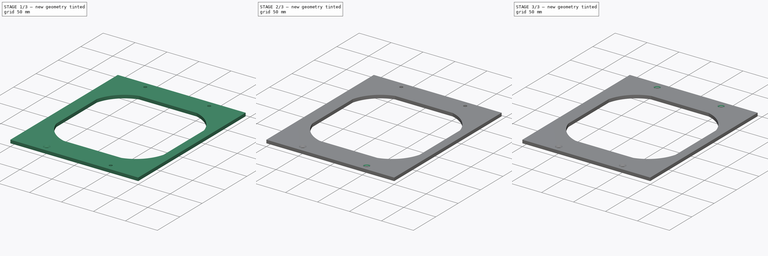
[diagram: build sequence overview — one tinted view per stage of 3, left to right]
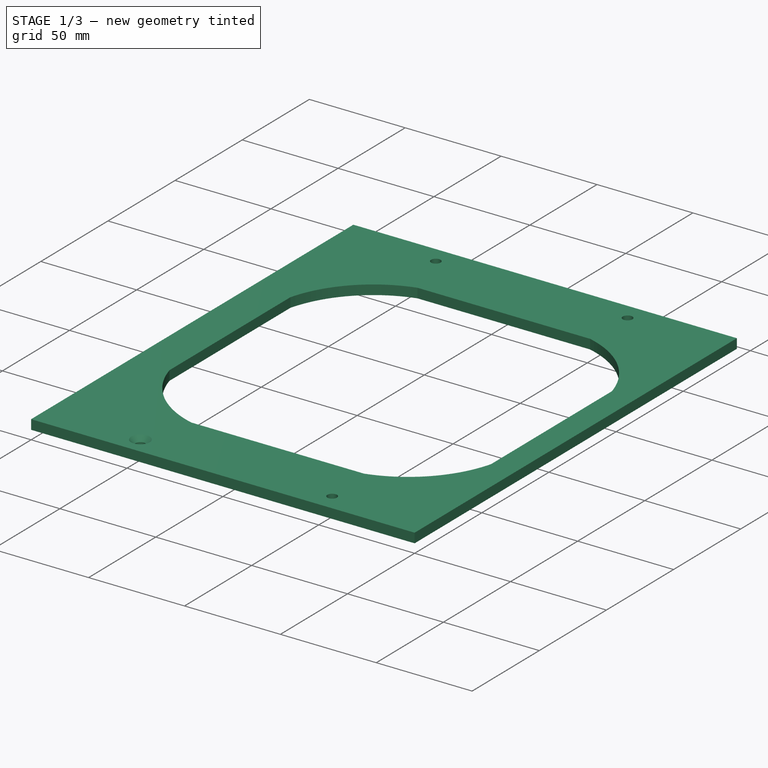
[diagram: stage 1 of 3 — iso view after this stage's code; geometry added in this stage tinted green]
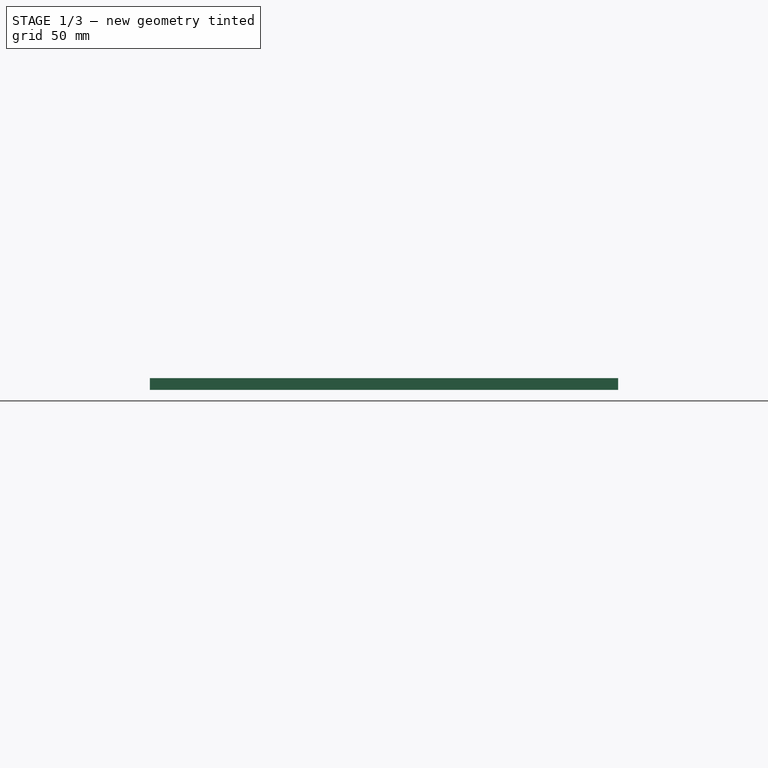
[diagram: stage 1 of 3 — front view after this stage's code; geometry added in this stage tinted green]
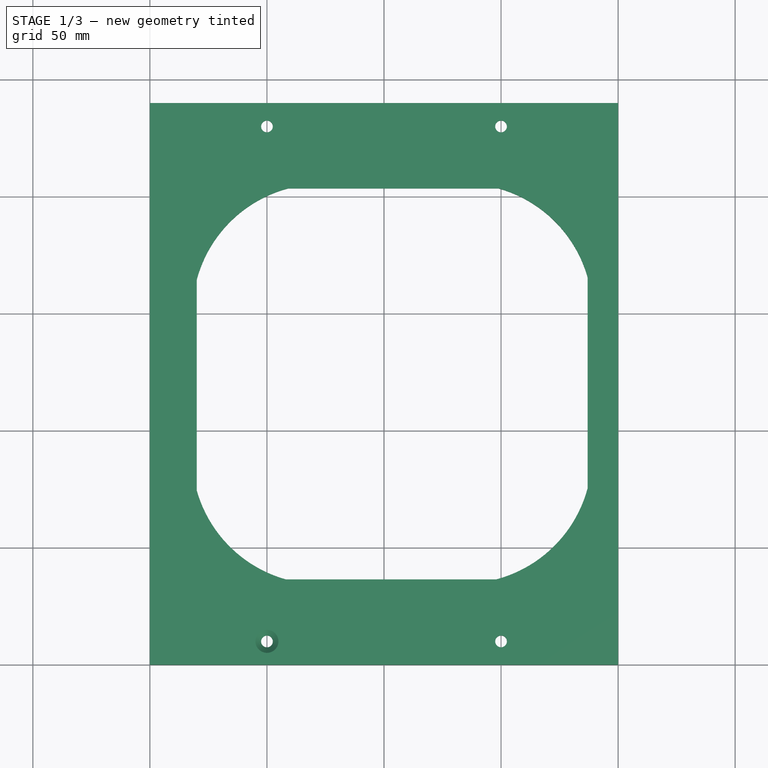
[diagram: stage 1 of 3 — top view after this stage's code; geometry added in this stage tinted green]
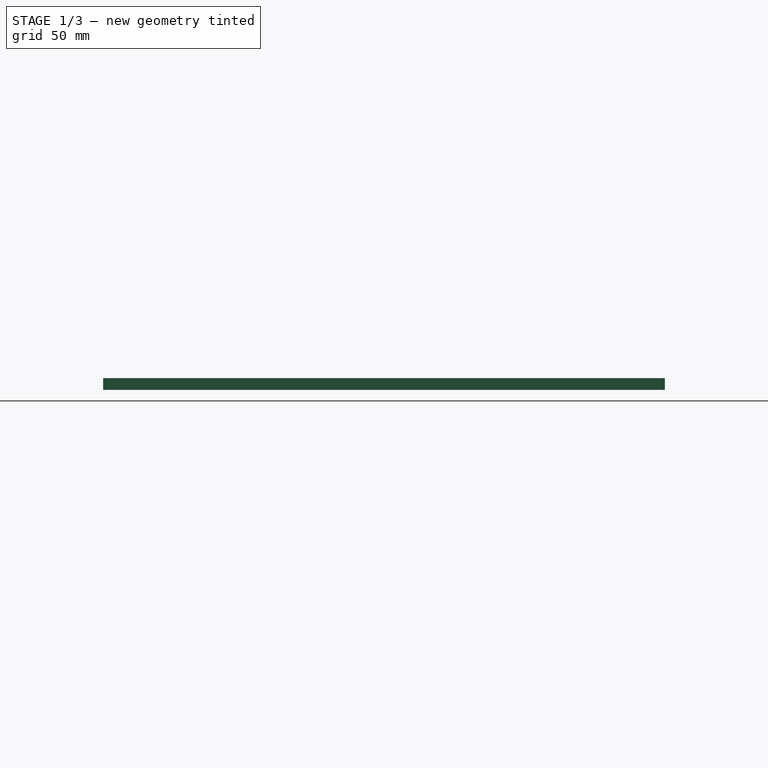
[diagram: stage 1 of 3 — right view after this stage's code; geometry added in this stage tinted green]
FCSTD DOCUMENT  (FreeCAD 0.20R29177 (Git))
Label: FlowerPotFrame-OffCenter
License: All rights reserved
LicenseURL: http://en.wikipedia.org/wiki/All_rights_reserved
objects: Part::Chamfer×4, Sketcher::SketchObject×3, Part::Face×3, Part::Cut×2, Part::Extrusion×1
note: 13 computed .brp shape members not serialized (recipe doc carries the construction recipe); baked Part::Feature solids carry a one-line shape summary decoded from their .brp

FEATURE [Sketcher::SketchObject] Sketch
  FullyConstrained = true
  sketch-geometry (4):
    g0: LineSegment StartX=0 StartY=0 StartZ=0 EndX=200 EndY=0 EndZ=0
    g1: LineSegment StartX=200 StartY=0 StartZ=0 EndX=200 EndY=240 EndZ=0
    g2: LineSegment StartX=200 StartY=240 StartZ=0 EndX=0 EndY=240 EndZ=0
    g3: LineSegment StartX=0 StartY=240 StartZ=0 EndX=0 EndY=0 EndZ=0
  constraints (11):
    c: Coincident(g0,g1)
    c: Coincident(g1,g2)
    c: Coincident(g2,g3)
    c: Coincident(g3,g0)
    c: Horizontal(g0)
    c: Horizontal(g2)
    c: Vertical(g1)
    c: Vertical(g3)
    c: Coincident(g0,g-1)
    c: DistanceX(g2,g2) = 200
    c: DistanceY(g3,g3) = 240
FEATURE [Sketcher::SketchObject] Sketch001
  ExternalGeometry = -> [Sketch]
  FullyConstrained = true
  MapMode = 2
  Support = -> [Sketch]
  sketch-geometry (18):
    g0: LineSegment StartX=0 StartY=240 StartZ=0 EndX=200 EndY=0 EndZ=0
    g1: LineSegment StartX=0 StartY=0 StartZ=0 EndX=200 EndY=240 EndZ=0
    g2: LineSegment StartX=20 StartY=203.5 StartZ=0 EndX=187 EndY=203.5 EndZ=0
    g3: LineSegment StartX=187 StartY=203.5 StartZ=0 EndX=187 EndY=36.5 EndZ=0
    g4: LineSegment StartX=187 StartY=36.5 StartZ=0 EndX=20 EndY=36.5 EndZ=0
    g5: LineSegment StartX=20 StartY=36.5 StartZ=0 EndX=20 EndY=203.5 EndZ=0
    g6: LineSegment StartX=187 StartY=203.5 StartZ=0 EndX=20 EndY=36.5 EndZ=0
    g7: LineSegment StartX=20 StartY=203.5 StartZ=0 EndX=187 EndY=36.5 EndZ=0
    g8: ArcOfCircle CenterX=73.1489 CenterY=150.351 CenterZ=0 NormalX=0 NormalY=0 NormalZ=1 AngleXU=0 Radius=55 StartAngle=1.83097 EndAngle=2.88141
    g9: ArcOfCircle CenterX=134.066 CenterY=150.566 CenterZ=0 NormalX=0 NormalY=0 NormalZ=1 AngleXU=0 Radius=55 StartAngle=0.274975 EndAngle=1.29582
    g10: ArcOfCircle CenterX=72.9338 CenterY=89.4338 CenterZ=0 NormalX=0 NormalY=0 NormalZ=1 AngleXU=0 Radius=55 StartAngle=3.41657 EndAngle=4.43741
    g11: ArcOfCircle CenterX=133.851 CenterY=89.6489 CenterZ=0 NormalX=0 NormalY=0 NormalZ=1 AngleXU=0 Radius=55 StartAngle=4.97257 EndAngle=6.02301
    g12: LineSegment StartX=20 StartY=74.5 StartZ=0 EndX=20 EndY=164.5 EndZ=0
    g13: LineSegment StartX=59 StartY=203.5 StartZ=0 EndX=149 EndY=203.5 EndZ=0
    g14: LineSegment StartX=187 StartY=165.5 StartZ=0 EndX=187 EndY=75.5 EndZ=0
    g15: LineSegment StartX=148 StartY=36.5 StartZ=0 EndX=58 EndY=36.5 EndZ=0
    g16: GeomPoint X=103.5 Y=120 Z=0
    g17: GeomPoint X=100 Y=120 Z=0
  constraints (52):
    c: Coincident(g0,g-6)
    c: Coincident(g0,g-5)
    c: Coincident(g1,g-6)
    c: Coincident(g1,g-4)
    c: Coincident(g2,g3)
    c: Coincident(g3,g4)
    c: Coincident(g4,g5)
    c: Coincident(g5,g2)
    c: Horizontal(g2)
    c: Horizontal(g4)
    c: Vertical(g3)
    c: Vertical(g5)
    c: DistanceX(g4,g4) = 167
    c: DistanceY(g3,g3) = 167
    c: Coincident(g6,g2)
    c: Coincident(g6,g4)
    c: Coincident(g7,g2)
    c: Coincident(g7,g3)
    c: PointOnObject(g8,g7)
    c: PointOnObject(g8,g5)
    c: PointOnObject(g8,g2)
    c: PointOnObject(g9,g6)
    c: PointOnObject(g9,g2)
    c: PointOnObject(g9,g3)
    c: PointOnObject(g10,g6)
    c: PointOnObject(g10,g4)
    c: PointOnObject(g10,g5)
    c: PointOnObject(g11,g7)
    c: PointOnObject(g11,g3)
    c: PointOnObject(g11,g4)
    c: DistanceX(g8,g9) = 90
    c: DistanceY(g11,g9) = 90
    c: DistanceX(g10,g11) = 90
    c: DistanceY(g4,g10) = 38
    c: Radius(g8) = 55
    c: Radius(g9) = 55
    c: Radius(g11) = 55
    c: Radius(g10) = 55
    c: Coincident(g12,g10)
    c: Coincident(g12,g8)
    c: Coincident(g13,g8)
    c: Coincident(g13,g9)
    c: Coincident(g14,g9)
    c: Coincident(g14,g11)
    c: Coincident(g15,g11)
    c: Coincident(g15,g10)
    c: PointOnObject(g16,g7)
    c: PointOnObject(g17,g0)
    c: PointOnObject(g16,g6)
    c: PointOnObject(g17,g1)
    c: Horizontal(g16,g17)
    c: DistanceX(g1,g4) = 20
FEATURE [Part::Face] Face
  FaceMakerClass = Part::FaceMakerBullseye
  Sources = -> [Sketch]
FEATURE [Part::Face] Face001
  FaceMakerClass = Part::FaceMakerBullseye
  Sources = -> [Sketch001]
FEATURE [Part::Cut] Cut
  Base = -> Face
  Tool = -> Face001
FEATURE [Sketcher::SketchObject] Sketch002
  ExternalGeometry = -> [Sketch]
  FullyConstrained = true
  MapMode = 5
  Support = -> [Cut]
  sketch-geometry (4):
    g0: Circle CenterX=50 CenterY=230 CenterZ=0 NormalX=0 NormalY=0 NormalZ=1 AngleXU=0 Radius=2.5
    g1: Circle CenterX=150 CenterY=230 CenterZ=0 NormalX=0 NormalY=0 NormalZ=1 AngleXU=0 Radius=2.5
    g2: Circle CenterX=50 CenterY=10 CenterZ=0 NormalX=0 NormalY=0 NormalZ=1 AngleXU=0 Radius=2.5
    g3: Circle CenterX=150 CenterY=10 CenterZ=0 NormalX=0 NormalY=0 NormalZ=1 AngleXU=0 Radius=2.5
  constraints (12):
    c: Diameter(g0) = 5
    c: Diameter(g1) = 5
    c: Diameter(g2) = 5
    c: Diameter(g3) = 5
    c: Horizontal(g0,g1)
    c: DistanceX(g0,g1) = 100
    c: DistanceX(g-1,g0) = 50
    c: Horizontal(g2,g3)
    c: DistanceX(g2,g3) = 100
    c: DistanceX(g-1,g2) = 50
    c: DistanceY(g-1,g2) = 10
    c: DistanceY(g0,g-3) = 10
FEATURE [Part::Face] Face002
  FaceMakerClass = Part::FaceMakerBullseye
  Sources = -> [Sketch002]
FEATURE [Part::Cut] Cut001
  Base = -> Cut
  Tool = -> Face002
FEATURE [Part::Extrusion] Extrude
  Base = -> Cut001
  Dir = (0,0,1)
  DirMode = 2
  FaceMakerClass = Part::FaceMakerBullseye
  LengthFwd = 5
  LengthRev = 0
  Solid = false
  Symmetric = false
FEATURE [Part::Chamfer] Chamfer
  Base = -> Extrude
  Edges = 1 edges r=2.4: [Edge15]
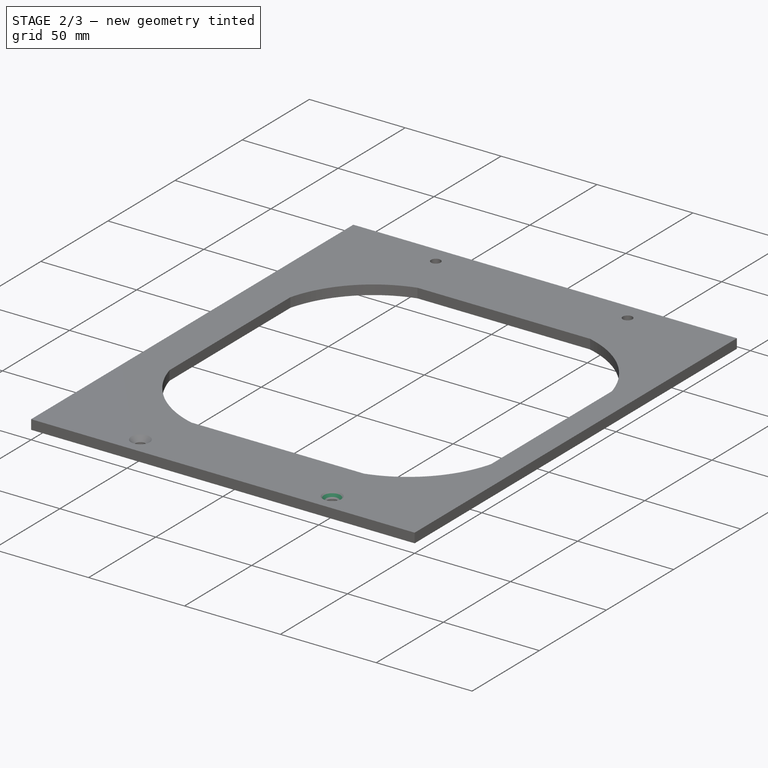
[diagram: stage 2 of 3 — iso view after this stage's code; geometry added in this stage tinted green]
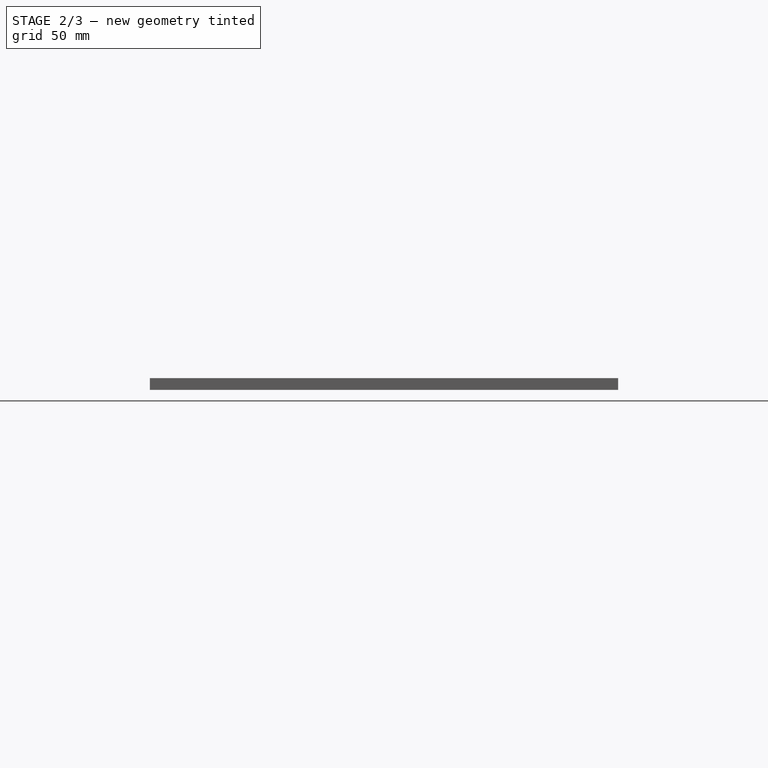
[diagram: stage 2 of 3 — front view after this stage's code; geometry added in this stage tinted green]
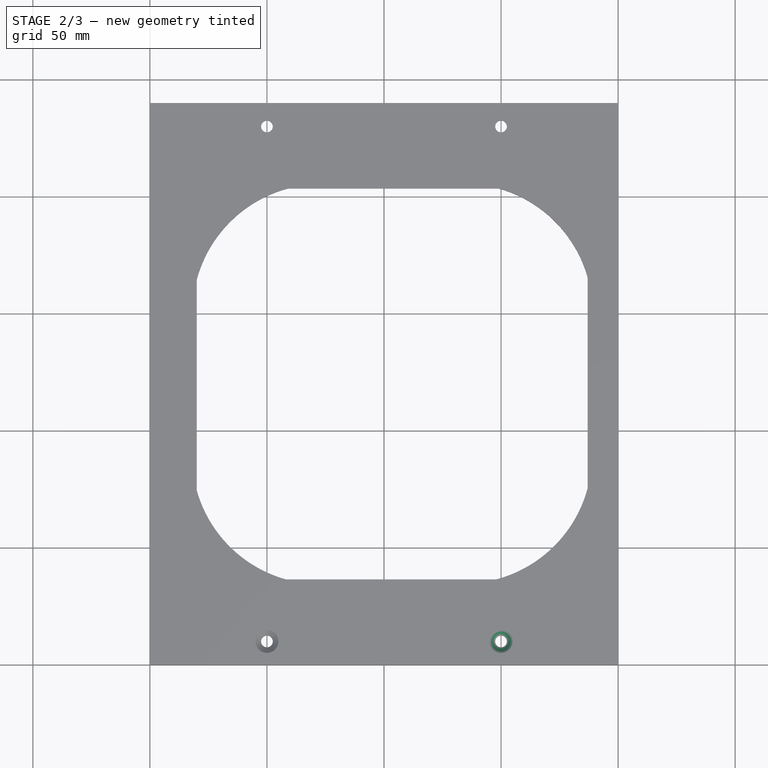
[diagram: stage 2 of 3 — top view after this stage's code; geometry added in this stage tinted green]
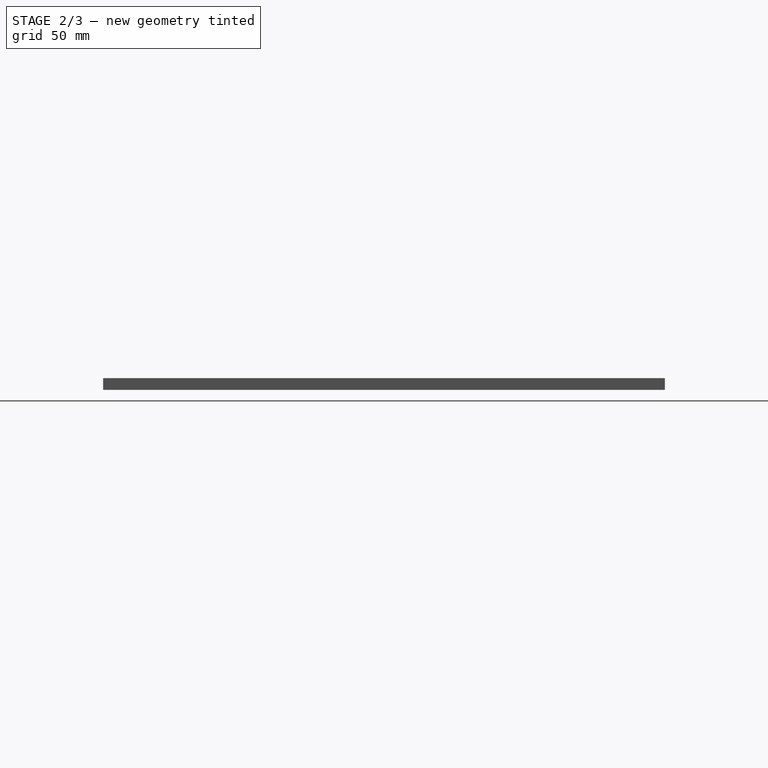
[diagram: stage 2 of 3 — right view after this stage's code; geometry added in this stage tinted green]
FEATURE [Part::Chamfer] Chamfer001
  Base = -> Chamfer
  Edges = 1 edges r=2.4: [Edge25]
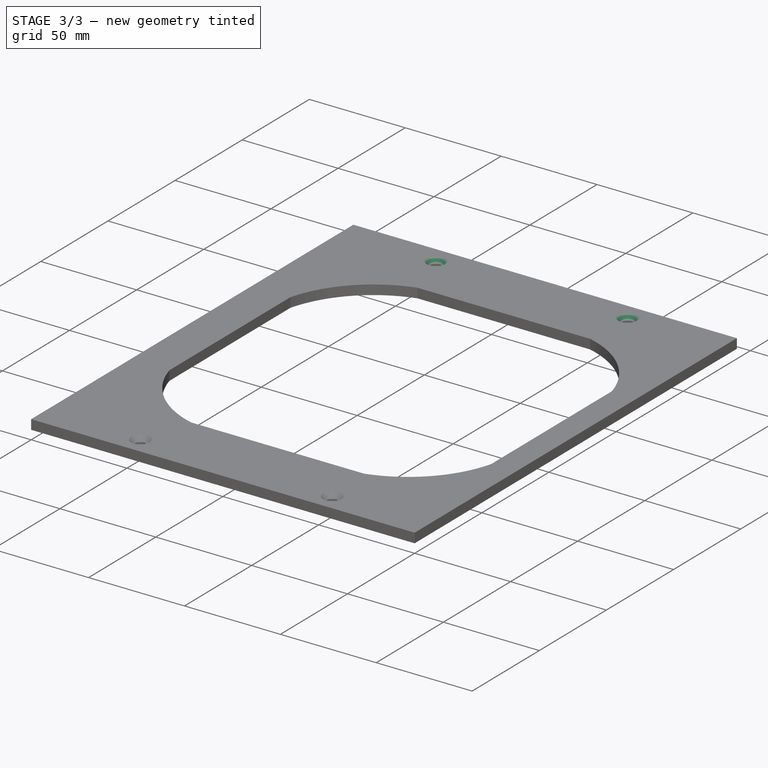
[diagram: stage 3 of 3 — iso view after this stage's code; geometry added in this stage tinted green]
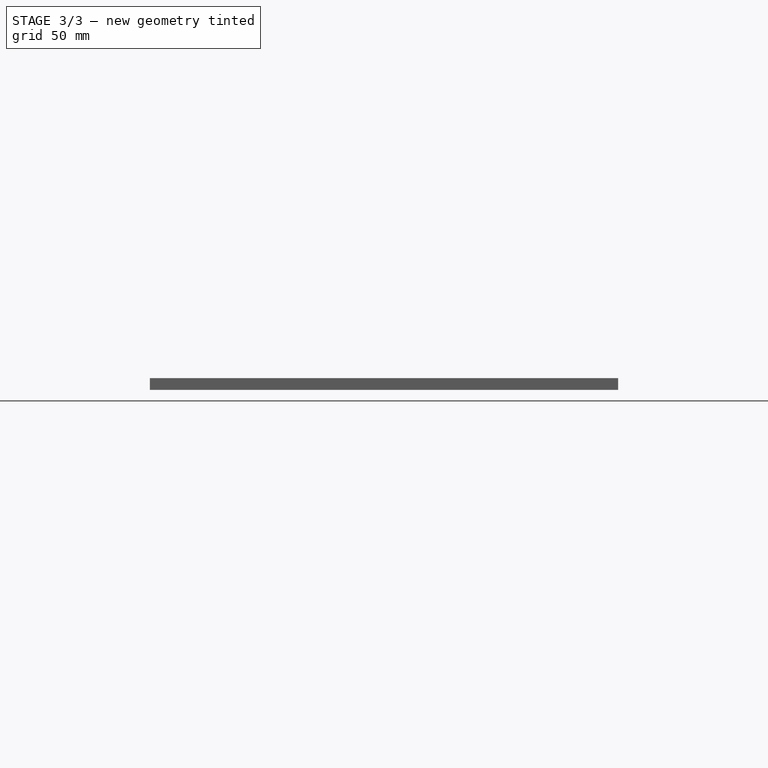
[diagram: stage 3 of 3 — front view after this stage's code; geometry added in this stage tinted green]
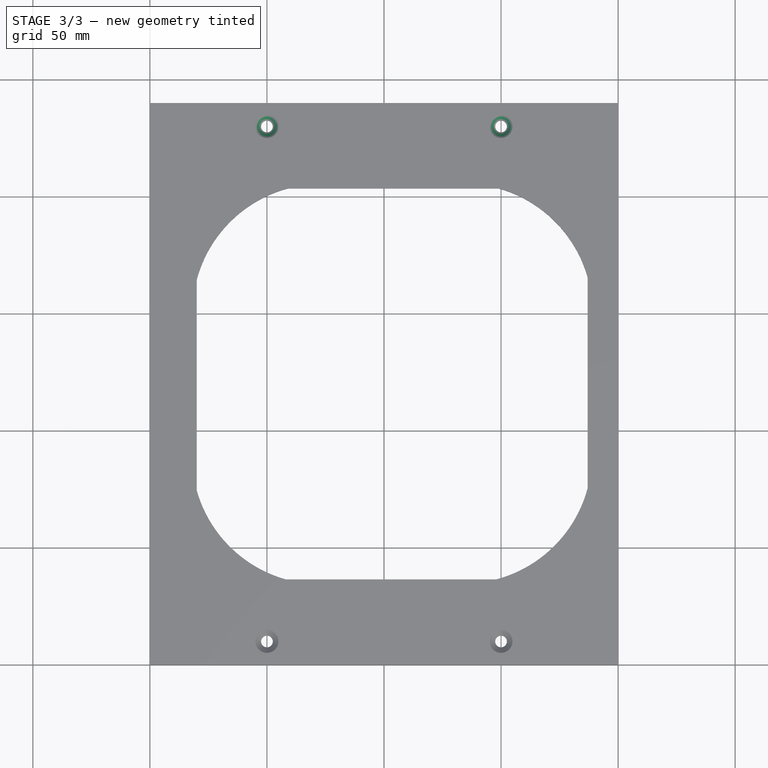
[diagram: stage 3 of 3 — top view after this stage's code; geometry added in this stage tinted green]
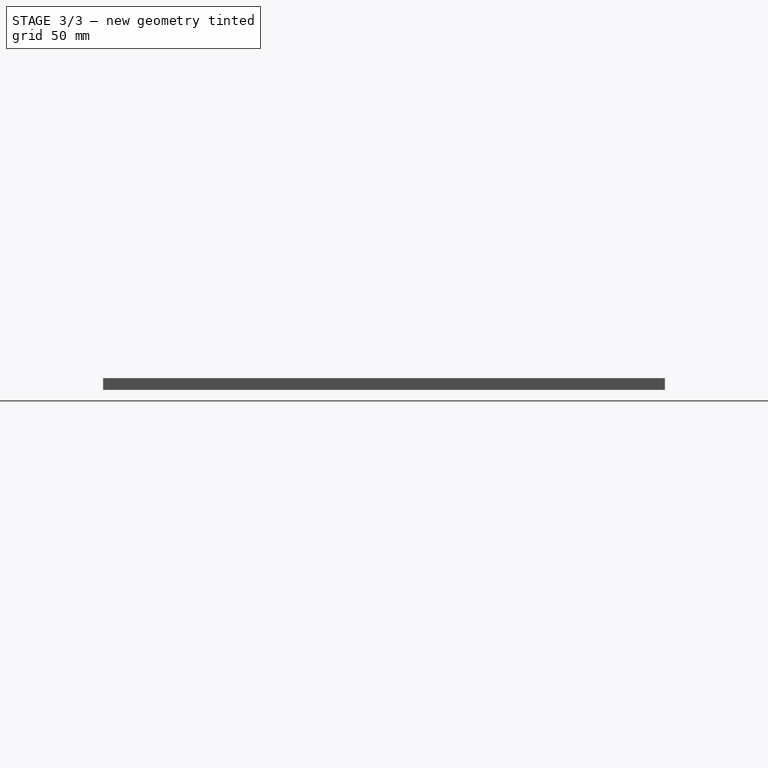
[diagram: stage 3 of 3 — right view after this stage's code; geometry added in this stage tinted green]
FEATURE [Part::Chamfer] Chamfer002
  Base = -> Chamfer001
  Edges = 1 edges r=2.4: [Edge16]
FEATURE [Part::Chamfer] Chamfer003
  Base = -> Chamfer002
  Edges = 1 edges r=2.4: [Edge16]
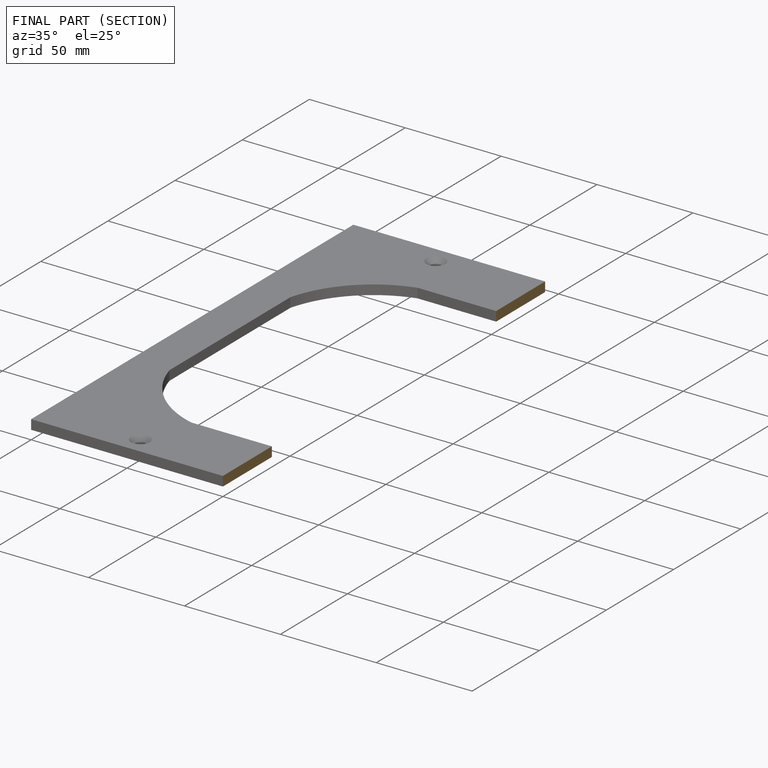
[diagram: finished part — half-section view (interior)]
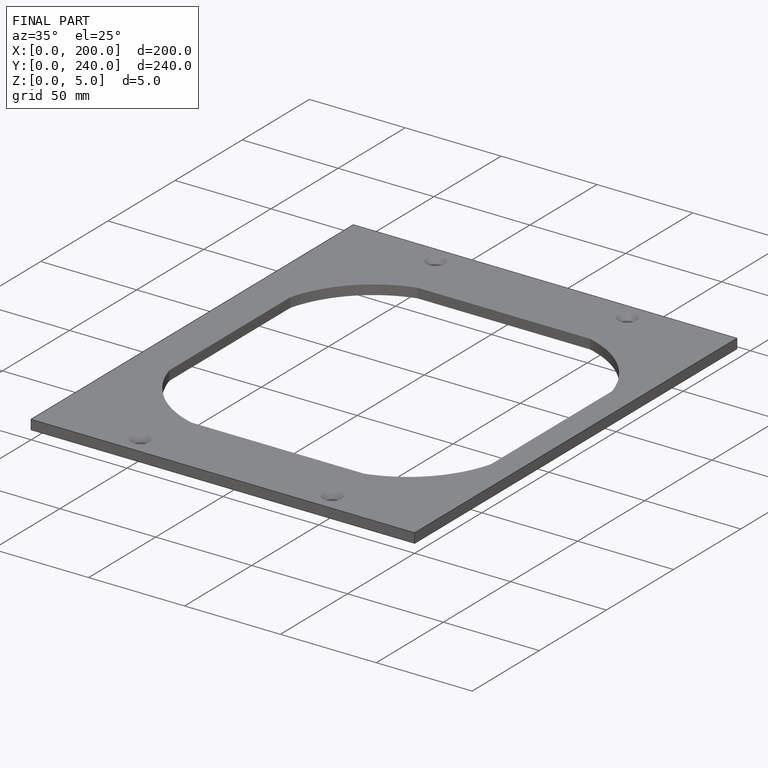
[diagram: finished part — iso view with bounding-box wireframe]
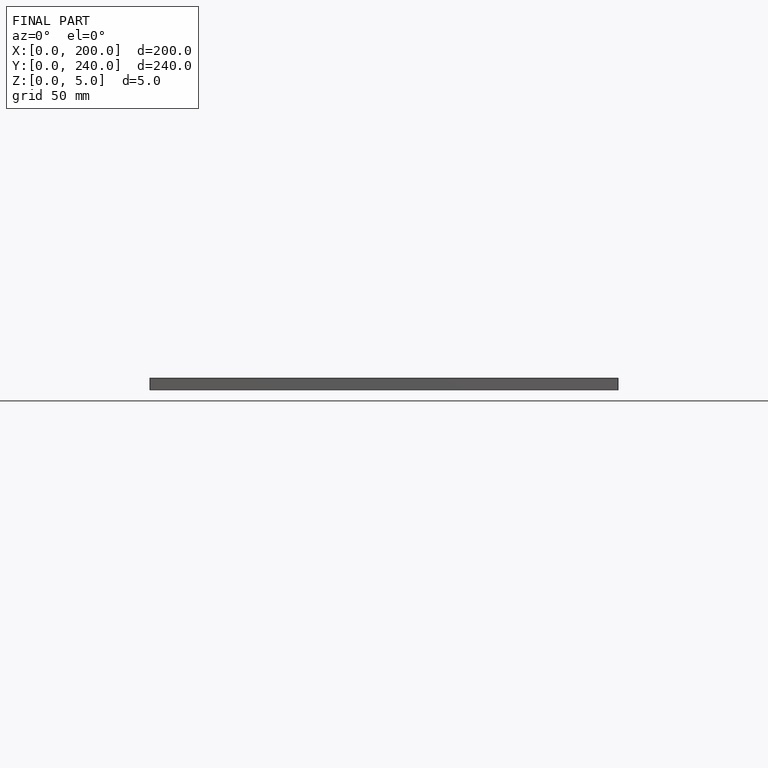
[diagram: finished part — front view with bounding-box wireframe]
